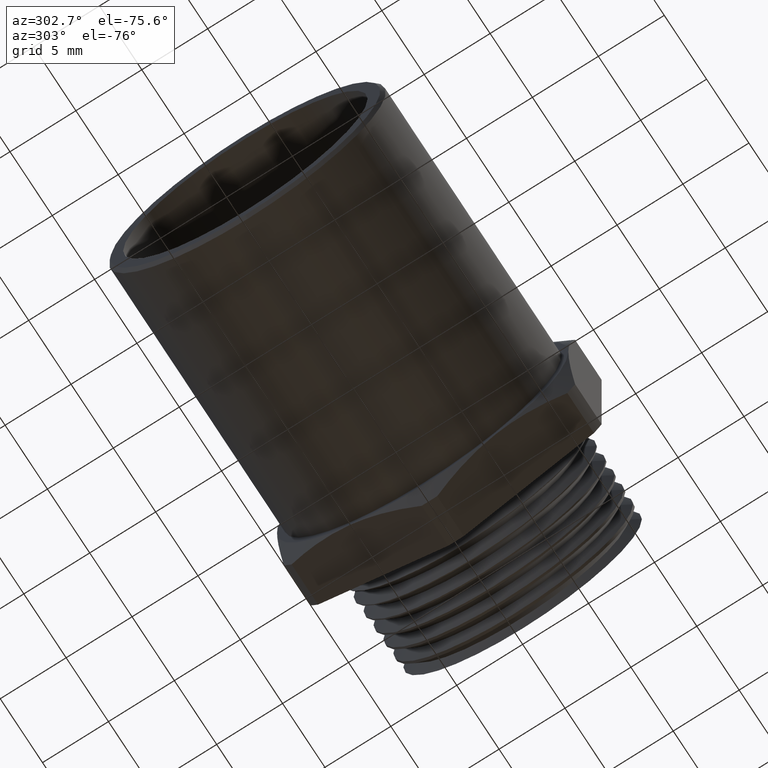
[diagram: clean part render]
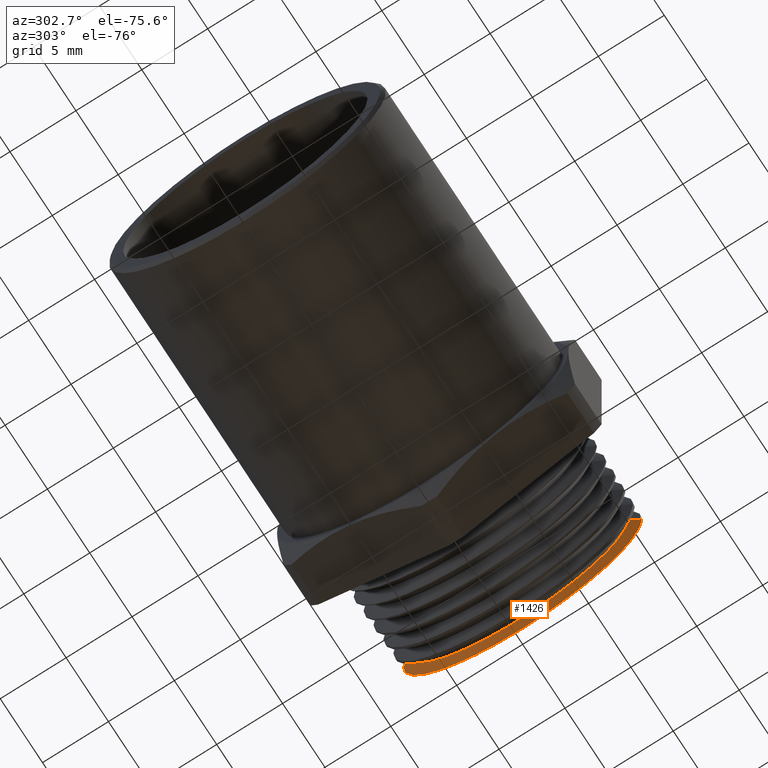
[diagram: same view with one face highlighted and labeled with its STEP entity id]
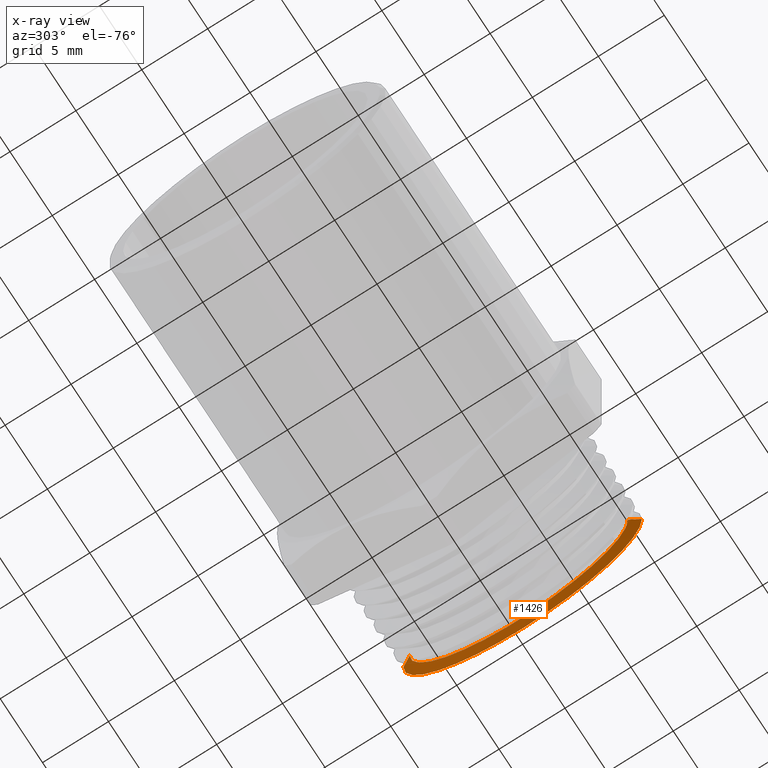
[diagram: x-ray of the same camera — body ghosted, the highlighted face saturated]
A machine part, auxiliary view. The second image highlights one B-rep face of the part: STEP entity #1426.
The next image is the same camera in x-ray: the body ghosted, the highlighted face saturated — about 0% of this face is hidden behind the body in this view.
In plain terms, the highlighted conical surface has half-angle 60 deg.
Its self-contained STEP definition (entity closure, byte-faithful):
#794 = CARTESIAN_POINT ( 'NONE',  ( -0.01743706747080867400, -0.3259198544916922500, 0.0000000000000000000 ) ) ;
#795 = DIRECTION ( 'NONE',  ( 0.4999999999999938400, -0.8660254037844422600, 1.060575238724911200E-016 ) ) ;
#796 = VECTOR ( 'NONE', #795, 39.37007874015748100 ) ;
#797 = CARTESIAN_POINT ( 'NONE',  ( -0.01743706747080867400, -0.3259198544916922500, 3.991367065818219200E-017 ) ) ;
#798 = LINE ( 'NONE', #797, #796 ) ;
#799 = CARTESIAN_POINT ( 'NONE',  ( 8.537024980200822600E-017, -0.3561217412861400500, 4.361233505728531600E-017 ) ) ;
#1011 = VERTEX_POINT ( 'NONE', #799 ) ;
#1012 = EDGE_CURVE ( 'NONE', #1014, #1011, #798, .T. ) ;
#1014 = VERTEX_POINT ( 'NONE', #794 ) ;
#1152 = EDGE_CURVE ( 'NONE', #1011, #1507, #1685, .T. ) ;
#1372 = EDGE_LOOP ( 'NONE', ( #1387, #1386, #1380, #1384 ) ) ;
#1376 = EDGE_CURVE ( 'NONE', #1014, #1485, #1997, .T. ) ;
#1380 = ORIENTED_EDGE ( 'NONE', *, *, #1502, .T. ) ;
#1384 = ORIENTED_EDGE ( 'NONE', *, *, #1152, .F. ) ;
#1386 = ORIENTED_EDGE ( 'NONE', *, *, #1376, .T. ) ;
#1387 = ORIENTED_EDGE ( 'NONE', *, *, #1012, .F. ) ;
#1426 = ADVANCED_FACE ( 'NONE', ( #2050 ), #2102, .T. ) ;
#1485 = VERTEX_POINT ( 'NONE', #2196 ) ;
#1502 = EDGE_CURVE ( 'NONE', #1485, #1507, #2256, .T. ) ;
#1507 = VERTEX_POINT ( 'NONE', #2247 ) ;
#1681 = DIRECTION ( 'NONE',  ( 0.0000000000000000000, 0.0000000000000000000, 1.000000000000000000 ) ) ;
#1682 = DIRECTION ( 'NONE',  ( 1.000000000000000000, 0.0000000000000000000, 0.0000000000000000000 ) ) ;
#1683 = CARTESIAN_POINT ( 'NONE',  ( 8.537024980200822600E-017, -5.710291395177177200E-017, 2.403686705342757500E-017 ) ) ;
#1684 = AXIS2_PLACEMENT_3D ( 'NONE', #1683, #1682, #1681 ) ;
#1685 = CIRCLE ( 'NONE', #1684, 0.3561217412861399400 ) ;
#1994 = DIRECTION ( 'NONE',  ( 3.929044915128866700E-017, 1.000000000000000000, 0.0000000000000000000 ) ) ;
#1995 = DIRECTION ( 'NONE',  ( 1.000000000000000000, -3.789761643835506200E-017, 0.0000000000000000000 ) ) ;
#1996 = AXIS2_PLACEMENT_3D ( 'NONE', #2001, #1995, #1994 ) ;
#1997 = CIRCLE ( 'NONE', #1996, 0.3259198544916922000 ) ;
#2001 = CARTESIAN_POINT ( 'NONE',  ( -0.01743706747080866000, -5.710291395177177200E-017, 0.0000000000000000000 ) ) ;
#2050 = FACE_OUTER_BOUND ( 'NONE', #1372, .T. ) ;
#2099 = DIRECTION ( 'NONE',  ( 3.929044915128866700E-017, 1.000000000000000000, 0.0000000000000000000 ) ) ;
#2100 = DIRECTION ( 'NONE',  ( 1.000000000000000000, -3.789761643835506200E-017, 0.0000000000000000000 ) ) ;
#2101 = AXIS2_PLACEMENT_3D ( 'NONE', #2104, #2100, #2099 ) ;
#2102 = CONICAL_SURFACE ( 'NONE', #2101, 0.3259198544916922000, 1.047197551196604700 ) ;
#2104 = CARTESIAN_POINT ( 'NONE',  ( -0.01743706747080866000, -5.710291395177177200E-017, 0.0000000000000000000 ) ) ;
#2196 = CARTESIAN_POINT ( 'NONE',  ( -0.01743706747080864600, 0.3259198544916921400, 4.186706897235417200E-017 ) ) ;
#2247 = CARTESIAN_POINT ( 'NONE',  ( 8.537024980200822600E-017, 0.3561217412861398800, 0.0000000000000000000 ) ) ;
#2248 = DIRECTION ( 'NONE',  ( 0.4999999999999939500, 0.8660254037844420400, 0.0000000000000000000 ) ) ;
#2249 = VECTOR ( 'NONE', #2248, 39.37007874015748900 ) ;
#2250 = CARTESIAN_POINT ( 'NONE',  ( -0.01743706747080864600, 0.3259198544916921400, 0.0000000000000000000 ) ) ;
#2256 = LINE ( 'NONE', #2250, #2249 ) ;